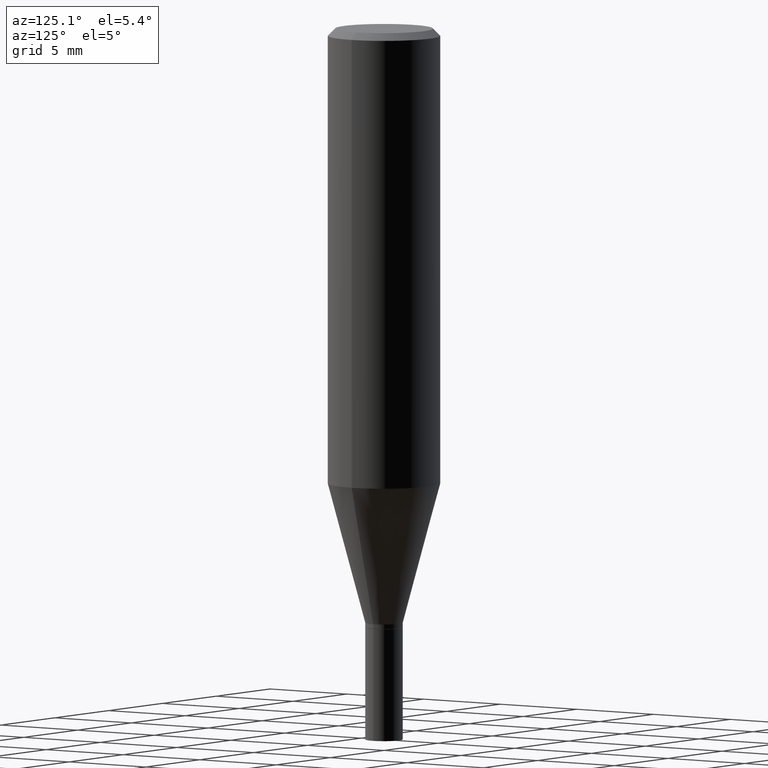
[diagram: clean part render]
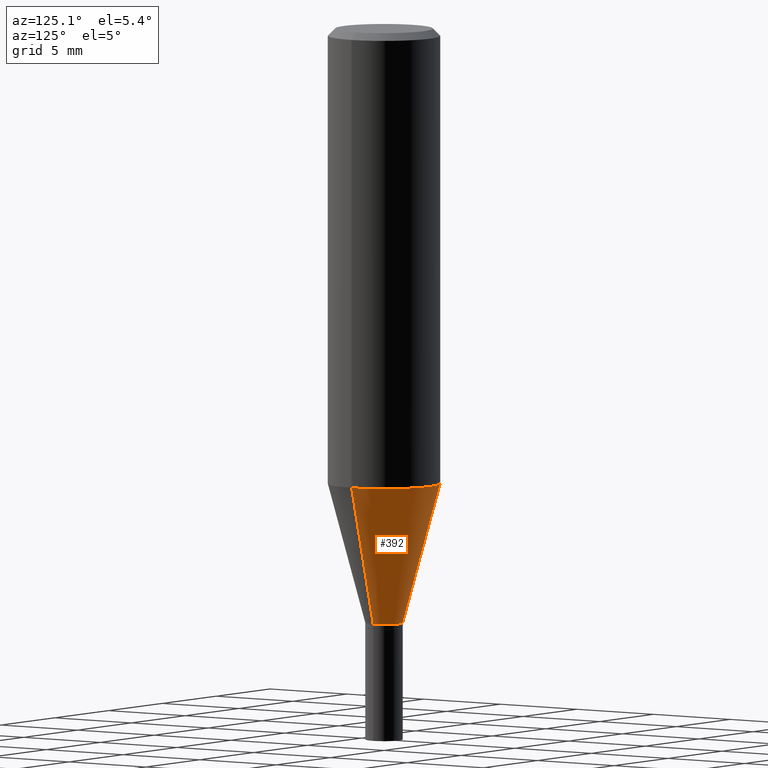
[diagram: same view with one face highlighted and labeled with its STEP entity id]
A machine part, auxiliary view. The second image highlights one B-rep face of the part: STEP entity #392.
In plain terms, the highlighted conical surface has half-angle 15 deg.
Its self-contained STEP definition (entity closure, byte-faithful):
#23 = DIRECTION ( 'NONE',  ( 1.000000000000000000, -6.982962677686269077E-15, 0.000000000000000000 ) ) ;
#31 = CIRCLE ( 'NONE', #99, 0.03934999999999991283 ) ;
#33 = DIRECTION ( 'NONE',  ( -2.445468806185136597E-29, 3.491481338843145583E-15, 1.000000000000000000 ) ) ;
#39 = LINE ( 'NONE', #349, #429 ) ;
#56 = EDGE_LOOP ( 'NONE', ( #151, #444, #253, #79 ) ) ;
#79 = ORIENTED_EDGE ( 'NONE', *, *, #396, .F. ) ;
#81 = DIRECTION ( 'NONE',  ( 1.000000000000000000, -6.982962677686260400E-15, 0.000000000000000000 ) ) ;
#84 = EDGE_CURVE ( 'NONE', #268, #309, #221, .T. ) ;
#85 = DIRECTION ( 'NONE',  ( -0.2588190451025213501, 5.211531920934551042E-15, 0.9659258262890682012 ) ) ;
#88 = LINE ( 'NONE', #198, #399 ) ;
#99 = AXIS2_PLACEMENT_3D ( 'NONE', #430, #278, #81 ) ;
#103 = EDGE_CURVE ( 'NONE', #414, #137, #31, .T. ) ;
#130 = DIRECTION ( 'NONE',  ( 0.2588190451025213501, 1.565188264969621968E-15, 0.9659258262890682012 ) ) ;
#137 = VERTEX_POINT ( 'NONE', #393 ) ;
#151 = ORIENTED_EDGE ( 'NONE', *, *, #103, .T. ) ;
#168 = CARTESIAN_POINT ( 'NONE',  ( 0.03934999999999991283, -4.652398884008490026E-15, -1.253800000000000248 ) ) ;
#198 = CARTESIAN_POINT ( 'NONE',  ( -0.03934999999999991283, -4.098020736119937292E-15, -1.253800000000000248 ) ) ;
#217 = CONICAL_SURFACE ( 'NONE', #266, 0.03934999999999991283, 0.2617993877991500740 ) ;
#221 = CIRCLE ( 'NONE', #422, 0.1180999999999999966 ) ;
#235 = CARTESIAN_POINT ( 'NONE',  ( 2.347407949845566514E-29, -3.351476424810041143E-15, -0.9599009989039514190 ) ) ;
#253 = ORIENTED_EDGE ( 'NONE', *, *, #84, .F. ) ;
#265 = CARTESIAN_POINT ( 'NONE',  ( 3.066128789194924468E-29, -4.377619302641535898E-15, -1.253800000000000248 ) ) ;
#266 = AXIS2_PLACEMENT_3D ( 'NONE', #265, #33, #423 ) ;
#268 = VERTEX_POINT ( 'NONE', #378 ) ;
#278 = DIRECTION ( 'NONE',  ( -2.445468806185136597E-29, 3.491481338843145583E-15, 1.000000000000000000 ) ) ;
#309 = VERTEX_POINT ( 'NONE', #415 ) ;
#349 = CARTESIAN_POINT ( 'NONE',  ( 0.03934999999999991283, -4.652398884008490026E-15, -1.253800000000000248 ) ) ;
#363 = EDGE_CURVE ( 'NONE', #137, #309, #88, .T. ) ;
#378 = CARTESIAN_POINT ( 'NONE',  ( 0.1181000000000000105, -4.176164317044788617E-15, -0.9599009989039514190 ) ) ;
#392 = ADVANCED_FACE ( 'NONE', ( #451 ), #217, .T. ) ;
#393 = CARTESIAN_POINT ( 'NONE',  ( -0.03934999999999991283, -3.305173094998650119E-15, -1.253800000000000248 ) ) ;
#396 = EDGE_CURVE ( 'NONE', #414, #268, #39, .T. ) ;
#399 = VECTOR ( 'NONE', #85, 39.37007874015747433 ) ;
#412 = DIRECTION ( 'NONE',  ( -2.445468806185136597E-29, 3.491481338843145583E-15, 1.000000000000000000 ) ) ;
#414 = VERTEX_POINT ( 'NONE', #168 ) ;
#415 = CARTESIAN_POINT ( 'NONE',  ( -0.1181000000000000105, -2.512325453877362157E-15, -0.9599009989039514190 ) ) ;
#422 = AXIS2_PLACEMENT_3D ( 'NONE', #235, #412, #23 ) ;
#423 = DIRECTION ( 'NONE',  ( 1.000000000000000000, -6.982962677686260400E-15, 0.000000000000000000 ) ) ;
#429 = VECTOR ( 'NONE', #130, 39.37007874015747433 ) ;
#430 = CARTESIAN_POINT ( 'NONE',  ( 3.066128789194924468E-29, -4.377619302641535898E-15, -1.253800000000000248 ) ) ;
#444 = ORIENTED_EDGE ( 'NONE', *, *, #363, .T. ) ;
#451 = FACE_OUTER_BOUND ( 'NONE', #56, .T. ) ;